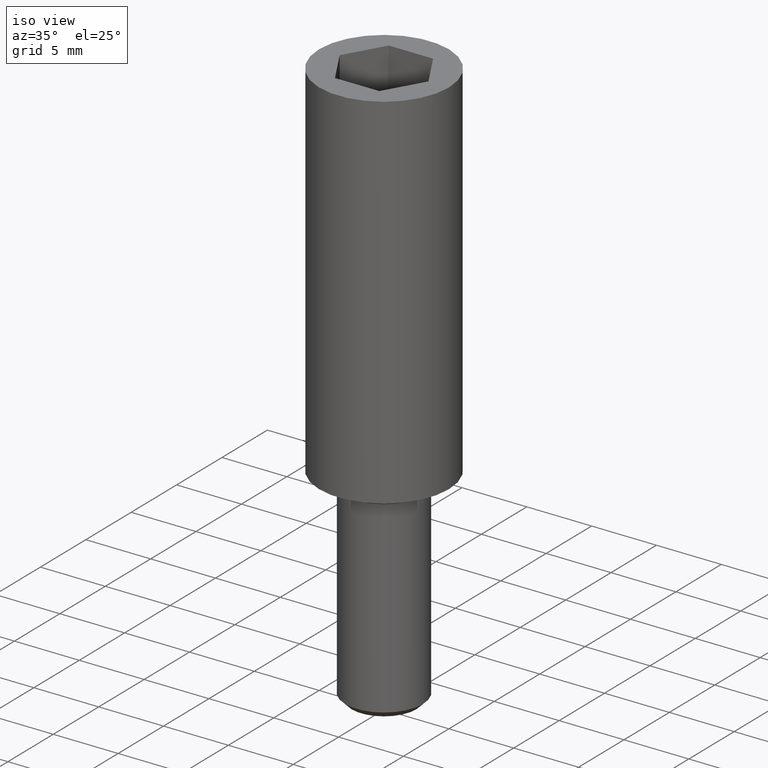
[diagram: clean part render]
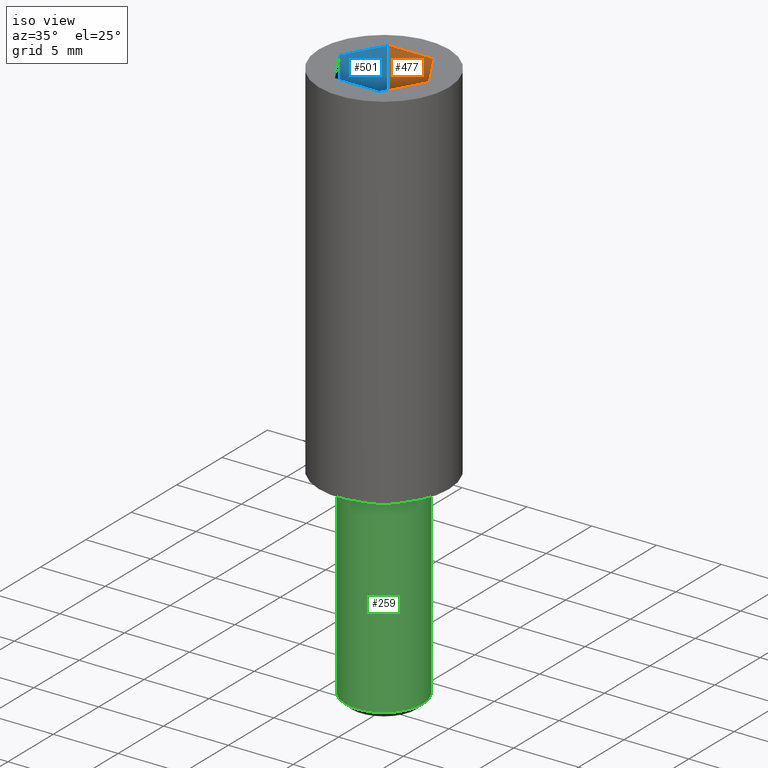
[diagram: same view with three faces highlighted in distinct colors, each labeled with its STEP entity id]
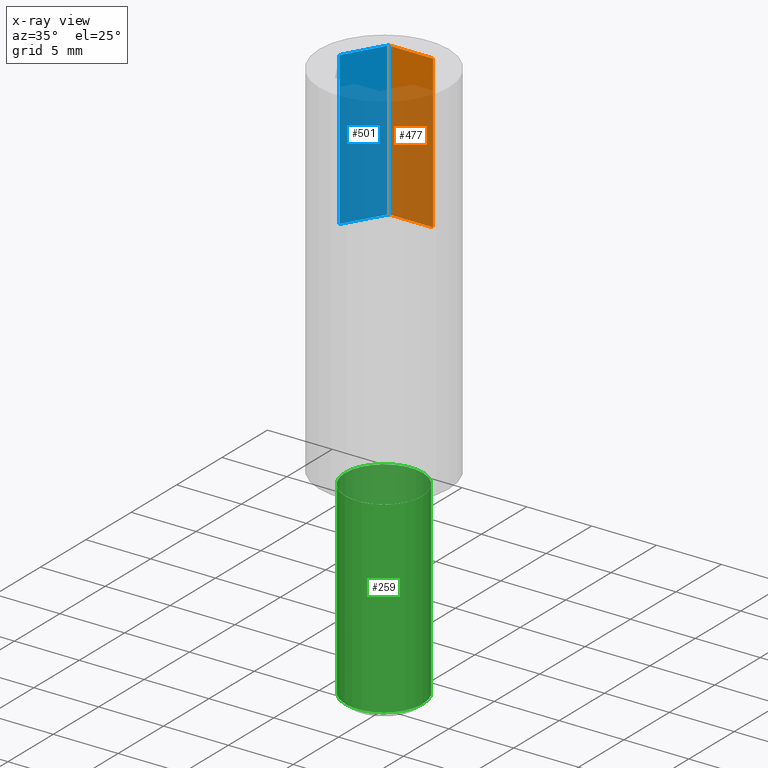
[diagram: x-ray of the same camera — body ghosted, the three highlighted faces saturated]
A machine part, iso view with three faces highlighted in distinct colors.
The next image is the same camera in x-ray (body ghosted, the three faces saturated) — at least one of them is partly hidden behind the body in this view.
Their STEP definitions:

[orange] entity #477 — the highlighted planar face has unit normal (0, -1, 0).
#29=CARTESIAN_POINT('',(1.710586138472991,2.962822102557766,27.999999999999773));
#30=VERTEX_POINT('',#29);
#61=CARTESIAN_POINT('',(-1.710586138472536,2.962822102557766,27.999999999999773));
#62=VERTEX_POINT('',#61);
#69=CARTESIAN_POINT('',(1.710586138472991,2.962822102557766,27.999999999999773));
#70=DIRECTION('',(-1.0,0.0,0.0));
#71=VECTOR('',#70,3.421172276945526);
#72=LINE('',#69,#71);
#73=EDGE_CURVE('',#30,#62,#72,.T.);
#437=CARTESIAN_POINT('',(1.710586138472991,2.962822102557766,16.232834198551473));
#438=VERTEX_POINT('',#437);
#439=CARTESIAN_POINT('',(1.710586138472991,2.962822102557766,27.999999999999773));
#440=DIRECTION('',(0.0,0.0,-1.0));
#441=VECTOR('',#440,11.767165801448300);
#442=LINE('',#439,#441);
#443=EDGE_CURVE('',#30,#438,#442,.T.);
#454=CARTESIAN_POINT('',(1.710586138472991,2.962822102557766,27.999999999999773));
#455=DIRECTION('',(0.0,-1.0,0.0));
#456=DIRECTION('',(-1.0,0.0,0.0));
#457=AXIS2_PLACEMENT_3D('',#454,#455,#456);
#458=PLANE('',#457);
#459=ORIENTED_EDGE('',*,*,#443,.F.);
#460=ORIENTED_EDGE('',*,*,#73,.T.);
#461=CARTESIAN_POINT('',(-1.710586138472536,2.962822102557766,16.232834198551473));
#462=VERTEX_POINT('',#461);
#463=CARTESIAN_POINT('',(-1.710586138472536,2.962822102557766,27.999999999999773));
#464=DIRECTION('',(0.0,0.0,-1.0));
#465=VECTOR('',#464,11.767165801448300);
#466=LINE('',#463,#465);
#467=EDGE_CURVE('',#62,#462,#466,.T.);
#468=ORIENTED_EDGE('',*,*,#467,.T.);
#469=CARTESIAN_POINT('',(1.710586138472991,2.962822102557766,16.232834198551473));
#470=DIRECTION('',(-1.0,0.0,0.0));
#471=VECTOR('',#470,3.421172276945526);
#472=LINE('',#469,#471);
#473=EDGE_CURVE('',#438,#462,#472,.T.);
#474=ORIENTED_EDGE('',*,*,#473,.F.);
#475=EDGE_LOOP('',(#459,#460,#468,#474));
#476=FACE_OUTER_BOUND('',#475,.T.);
#477=ADVANCED_FACE('',(#476),#458,.T.);

[blue] entity #501 — the highlighted planar face has unit normal (0.866, -0.5, 0).
#53=CARTESIAN_POINT('',(-3.421172276945640,0.0,27.999999999999773));
#54=VERTEX_POINT('',#53);
#61=CARTESIAN_POINT('',(-1.710586138472536,2.962822102557766,27.999999999999773));
#62=VERTEX_POINT('',#61);
#63=CARTESIAN_POINT('',(-1.710586138472535,2.962822102557766,27.999999999999773));
#64=DIRECTION('',(-0.500000000000089,-0.866025403784387,0.0));
#65=VECTOR('',#64,3.421172276945601);
#66=LINE('',#63,#65);
#67=EDGE_CURVE('',#62,#54,#66,.T.);
#461=CARTESIAN_POINT('',(-1.710586138472536,2.962822102557766,16.232834198551473));
#462=VERTEX_POINT('',#461);
#463=CARTESIAN_POINT('',(-1.710586138472536,2.962822102557766,27.999999999999773));
#464=DIRECTION('',(0.0,0.0,-1.0));
#465=VECTOR('',#464,11.767165801448300);
#466=LINE('',#463,#465);
#467=EDGE_CURVE('',#62,#462,#466,.T.);
#478=CARTESIAN_POINT('',(-1.710586138472536,2.962822102557766,27.999999999999773));
#479=DIRECTION('',(0.866025403784387,-0.500000000000089,3.061617E-017));
#480=DIRECTION('',(-0.500000000000089,-0.866025403784387,5.302876E-017));
#481=AXIS2_PLACEMENT_3D('',#478,#479,#480);
#482=PLANE('',#481);
#483=ORIENTED_EDGE('',*,*,#467,.F.);
#484=ORIENTED_EDGE('',*,*,#67,.T.);
#485=CARTESIAN_POINT('',(-3.421172276945640,0.0,16.232834198551473));
#486=VERTEX_POINT('',#485);
#487=CARTESIAN_POINT('',(-3.421172276945640,0.0,27.999999999999773));
#488=DIRECTION('',(0.0,0.0,-1.0));
#489=VECTOR('',#488,11.767165801448300);
#490=LINE('',#487,#489);
#491=EDGE_CURVE('',#54,#486,#490,.T.);
#492=ORIENTED_EDGE('',*,*,#491,.T.);
#493=CARTESIAN_POINT('',(-1.710586138472535,2.962822102557766,16.232834198551473));
#494=DIRECTION('',(-0.500000000000089,-0.866025403784387,0.0));
#495=VECTOR('',#494,3.421172276945601);
#496=LINE('',#493,#495);
#497=EDGE_CURVE('',#462,#486,#496,.T.);
#498=ORIENTED_EDGE('',*,*,#497,.F.);
#499=EDGE_LOOP('',(#483,#484,#492,#498));
#500=FACE_OUTER_BOUND('',#499,.T.);
#501=ADVANCED_FACE('',(#500),#482,.T.);

[green] entity #259 — the highlighted cylindrical surface (bore or boss wall) has radius 3 mm, axis along (0, -0, -1).
#139=CARTESIAN_POINT('',(-3.0,-3.552714E-015,-15.500000000000000));
#140=VERTEX_POINT('',#139);
#141=CARTESIAN_POINT('',(3.0,-3.552714E-015,-15.500000000000000));
#142=VERTEX_POINT('',#141);
#143=CARTESIAN_POINT('',(0.0,-3.552714E-015,-15.500000000000000));
#144=DIRECTION('',(0.0,-6.123234E-017,-1.0));
#145=DIRECTION('',(-1.0,0.0,0.0));
#146=AXIS2_PLACEMENT_3D('',#143,#144,#145);
#147=CIRCLE('',#146,3.0);
#148=EDGE_CURVE('',#140,#142,#147,.T.);
#150=CARTESIAN_POINT('',(0.0,-3.552714E-015,-15.500000000000000));
#151=DIRECTION('',(0.0,-6.123234E-017,-1.0));
#152=DIRECTION('',(-1.0,0.0,0.0));
#153=AXIS2_PLACEMENT_3D('',#150,#151,#152);
#154=CIRCLE('',#153,3.0);
#155=EDGE_CURVE('',#142,#140,#154,.T.);
#225=CARTESIAN_POINT('',(0.0,0.0,0.0));
#226=DIRECTION('',(0.0,-6.123234E-017,-1.0));
#227=DIRECTION('',(-1.0,0.0,0.0));
#228=AXIS2_PLACEMENT_3D('',#225,#226,#227);
#229=CYLINDRICAL_SURFACE('',#228,3.0);
#230=ORIENTED_EDGE('',*,*,#155,.F.);
#231=ORIENTED_EDGE('',*,*,#148,.F.);
#232=CARTESIAN_POINT('',(-3.0,0.0,-1.0));
#233=VERTEX_POINT('',#232);
#234=CARTESIAN_POINT('',(-3.0,-2.664845E-015,-1.0));
#235=DIRECTION('',(0.0,0.0,-1.0));
#236=VECTOR('',#235,14.500000000000000);
#237=LINE('',#234,#236);
#238=EDGE_CURVE('',#233,#140,#237,.T.);
#239=ORIENTED_EDGE('',*,*,#238,.F.);
#240=CARTESIAN_POINT('',(3.0,0.0,-1.0));
#241=VERTEX_POINT('',#240);
#242=CARTESIAN_POINT('',(0.0,0.0,-1.0));
#243=DIRECTION('',(0.0,-6.123234E-017,-1.0));
#244=DIRECTION('',(-1.0,0.0,0.0));
#245=AXIS2_PLACEMENT_3D('',#242,#243,#244);
#246=CIRCLE('',#245,3.0);
#247=EDGE_CURVE('',#233,#241,#246,.T.);
#248=ORIENTED_EDGE('',*,*,#247,.T.);
#249=CARTESIAN_POINT('',(0.0,0.0,-1.0));
#250=DIRECTION('',(0.0,-6.123234E-017,-1.0));
#251=DIRECTION('',(-1.0,0.0,0.0));
#252=AXIS2_PLACEMENT_3D('',#249,#250,#251);
#253=CIRCLE('',#252,3.0);
#254=EDGE_CURVE('',#241,#233,#253,.T.);
#255=ORIENTED_EDGE('',*,*,#254,.T.);
#256=ORIENTED_EDGE('',*,*,#238,.T.);
#257=EDGE_LOOP('',(#230,#231,#239,#248,#255,#256));
#258=FACE_OUTER_BOUND('',#257,.T.);
#259=ADVANCED_FACE('',(#258),#229,.T.);